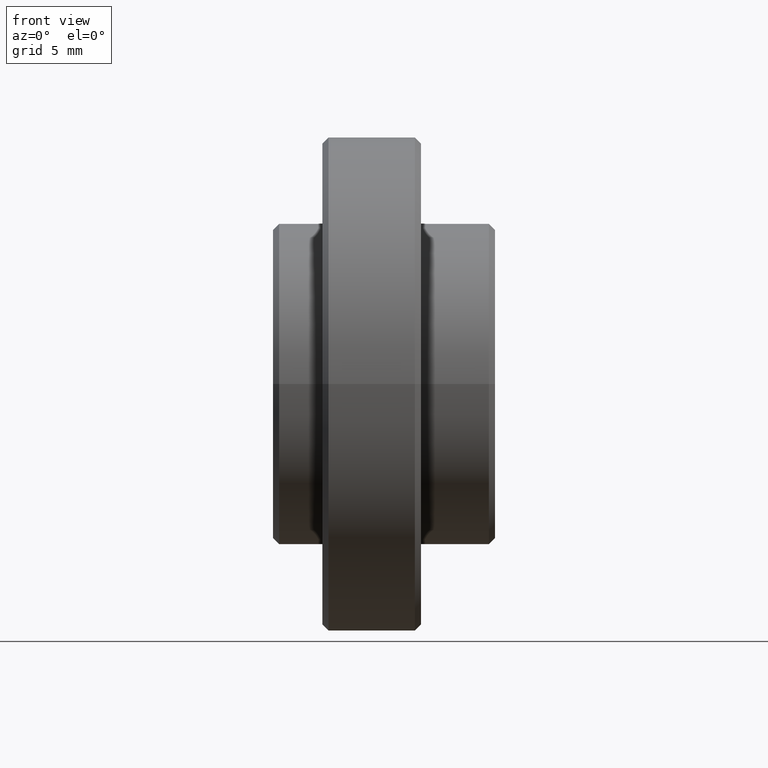
[diagram: clean part render]
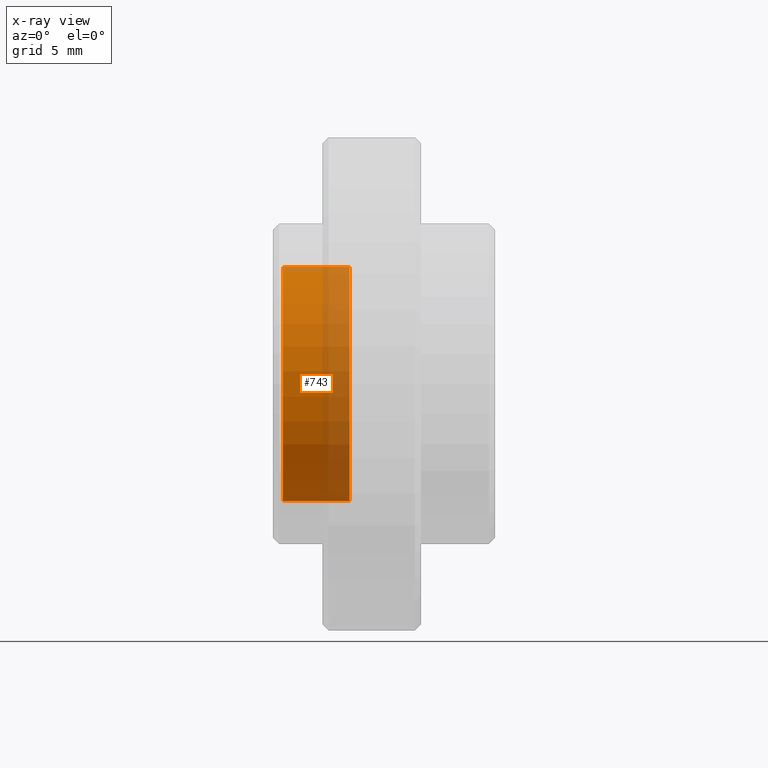
[diagram: x-ray — body ghosted, one internal face saturated and labeled with its STEP entity id]
A machine part, front view, then the same camera in x-ray: the body is ghosted and one INTERNAL B-rep face — a face not visible from any outside direction — is saturated and labeled: STEP entity #743.
In plain terms, the highlighted cylindrical surface (bore or boss wall) has radius 9.5 mm, axis along (1, -0, -0).
Its self-contained STEP definition (entity closure, byte-faithful):
#85=CYLINDRICAL_SURFACE('',#878,9.5);
#140=FACE_BOUND('',#301,.T.);
#201=FACE_OUTER_BOUND('',#300,.T.);
#300=EDGE_LOOP('',(#631));
#301=EDGE_LOOP('',(#632));
#387=CIRCLE('',#877,9.5);
#388=CIRCLE('',#879,9.5);
#454=VERTEX_POINT('',#1330);
#455=VERTEX_POINT('',#1333);
#527=EDGE_CURVE('',#454,#454,#387,.T.);
#528=EDGE_CURVE('',#455,#455,#388,.T.);
#631=ORIENTED_EDGE('',*,*,#528,.F.);
#632=ORIENTED_EDGE('',*,*,#527,.T.);
#743=ADVANCED_FACE('',(#201,#140),#85,.T.);
#877=AXIS2_PLACEMENT_3D('',#1331,#1093,#1094);
#878=AXIS2_PLACEMENT_3D('',#1332,#1095,#1096);
#879=AXIS2_PLACEMENT_3D('',#1334,#1097,#1098);
#1093=DIRECTION('center_axis',(1.,0.,0.));
#1094=DIRECTION('ref_axis',(0.,1.,0.));
#1095=DIRECTION('center_axis',(1.,0.,0.));
#1096=DIRECTION('ref_axis',(0.,1.,0.));
#1097=DIRECTION('center_axis',(1.,0.,0.));
#1098=DIRECTION('ref_axis',(0.,1.,0.));
#1330=CARTESIAN_POINT('',(0.3,9.5,0.));
#1331=CARTESIAN_POINT('Origin',(0.3,0.,0.));
#1332=CARTESIAN_POINT('Origin',(3.,0.,0.));
#1333=CARTESIAN_POINT('',(5.7,9.5,0.));
#1334=CARTESIAN_POINT('Origin',(5.7,0.,0.));